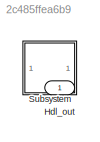
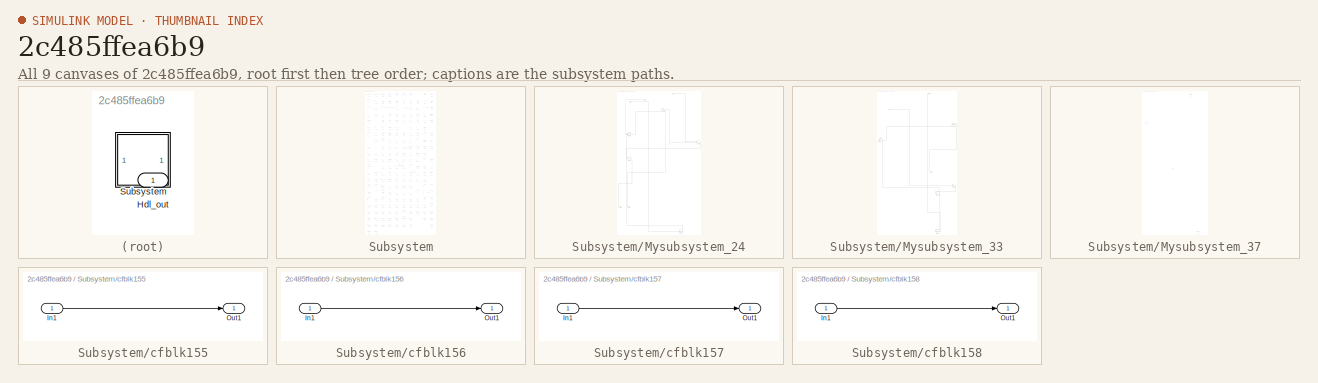
[diagram: thumbnail index - all 9 canvases of the model, root first then tree order]
MODEL slx_2c485ffea6b9
KIND model
CONFIG AbsTol = auto
CONFIG EnableMultiTasking = off
CONFIG FixedStep = auto
CONFIG MaxStep = auto
CONFIG MinStep = auto
CONFIG RelTol = 1e-3
CONFIG SampleTimeConstraint = Unconstrained
CONFIG SolverName = VariableStepAuto
CONFIG StartTime = 0.0
CONFIG StopTime = 10.0
BLOCK [Outport] Hdl_out
  OutDataTypeStr = uint8
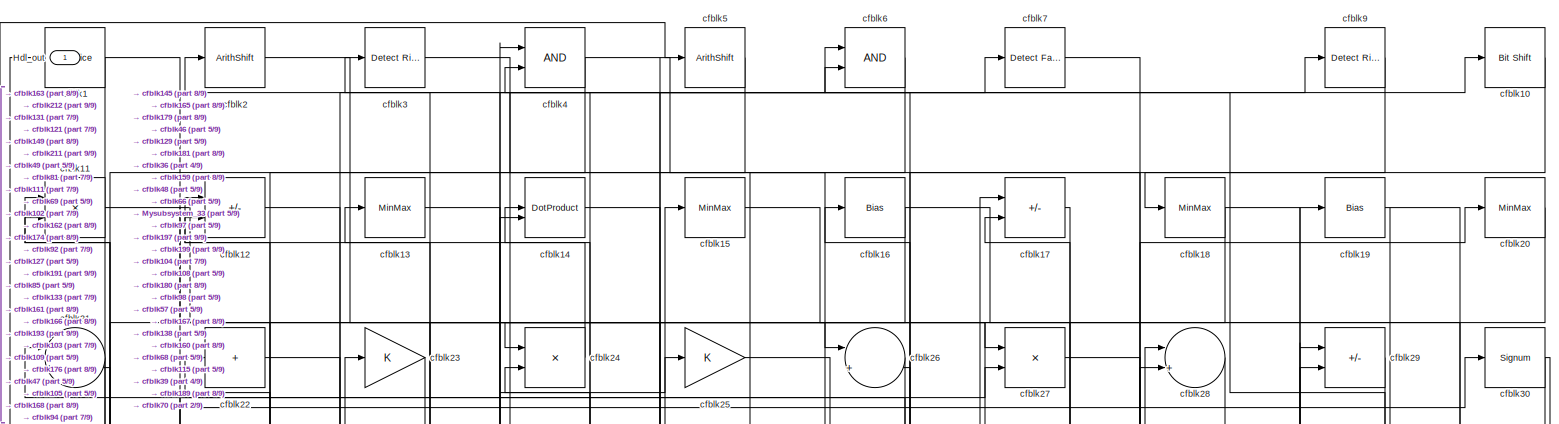
[diagram: Subsystem - part 1/9, full width, top band]
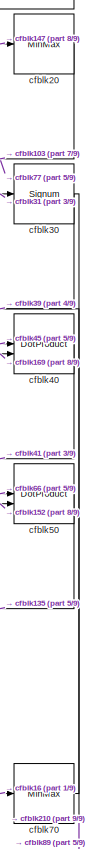
[diagram: Subsystem - part 2/9, top right region]
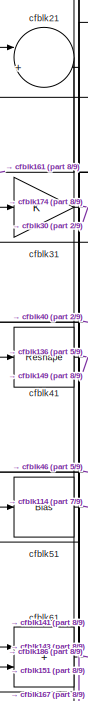
[diagram: Subsystem - part 3/9, top left region]
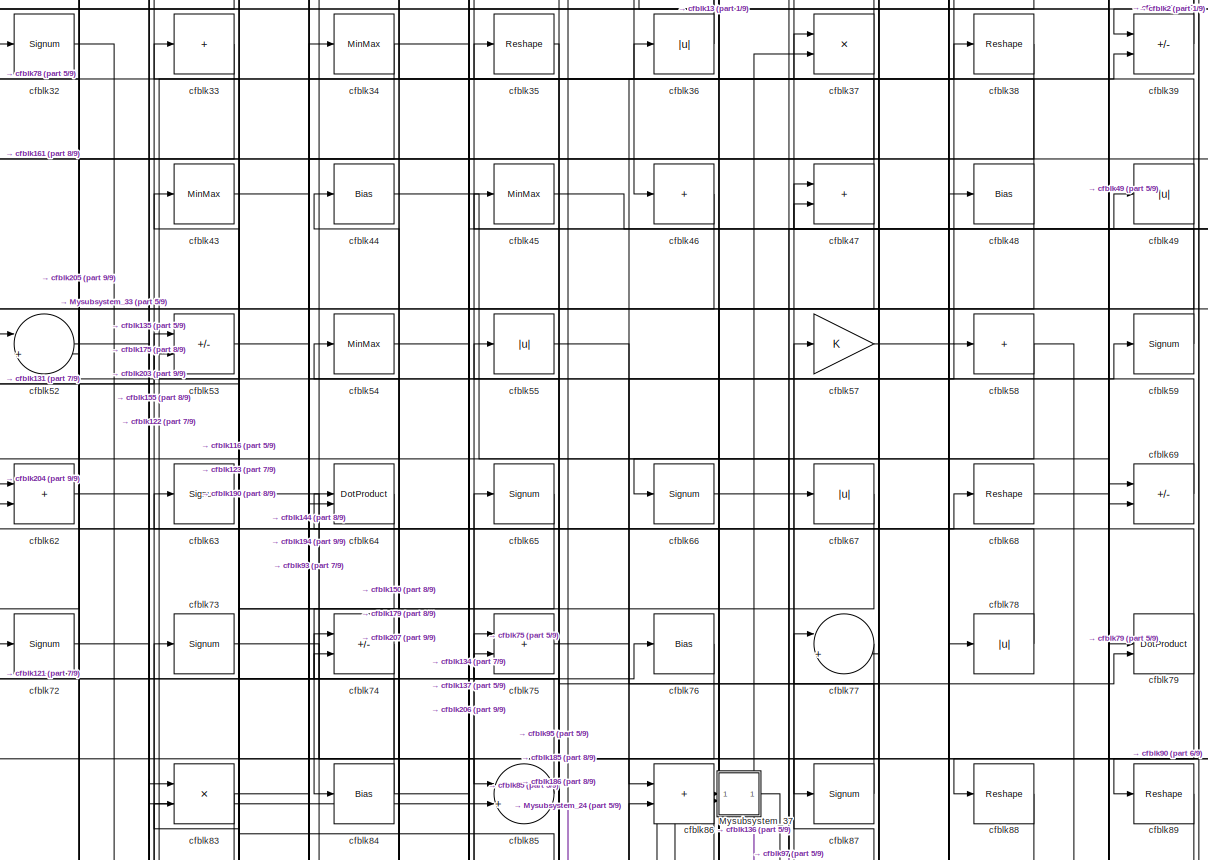
[diagram: Subsystem - part 4/9, full width, top band]
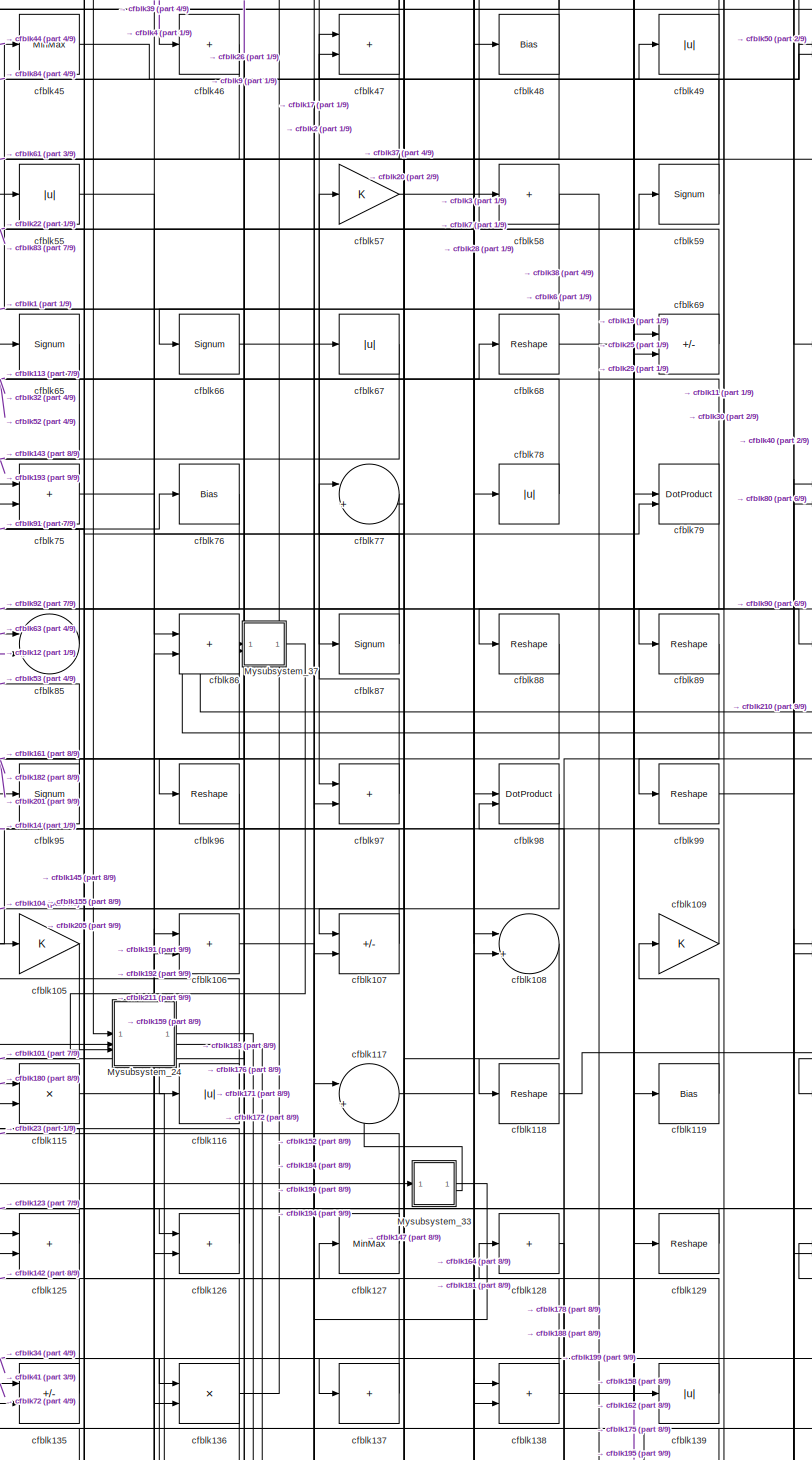
[diagram: Subsystem - part 5/9, central region]
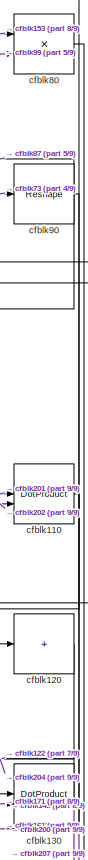
[diagram: Subsystem - part 6/9, middle right region]
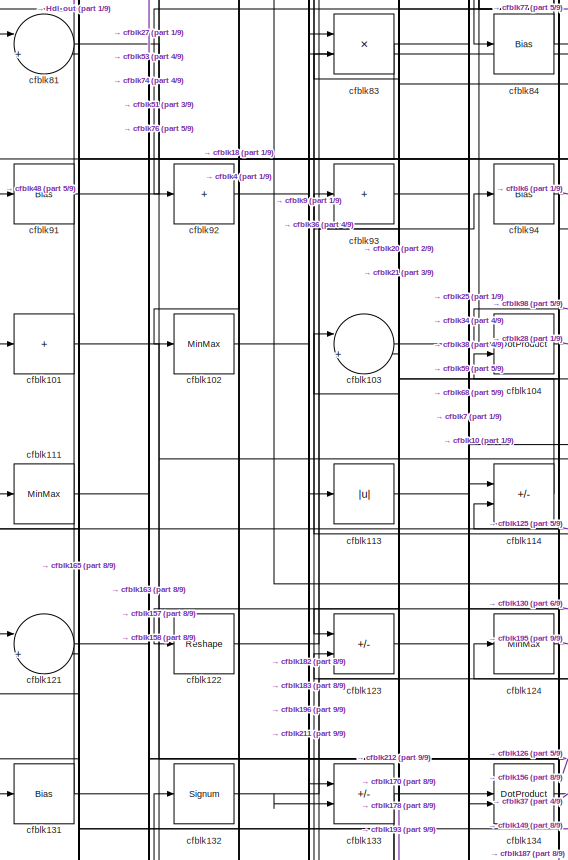
[diagram: Subsystem - part 7/9, middle left region]
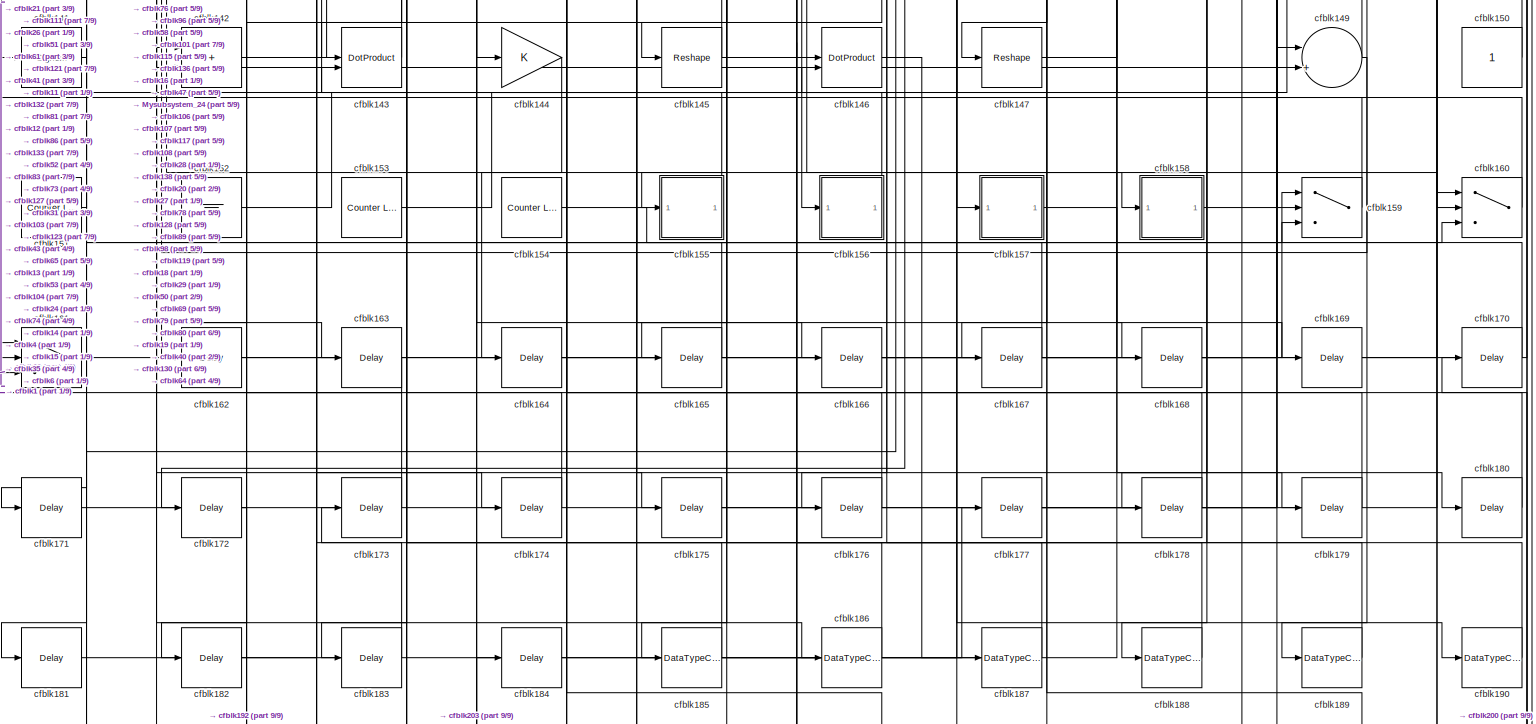
[diagram: Subsystem - part 8/9, full width, bottom band]
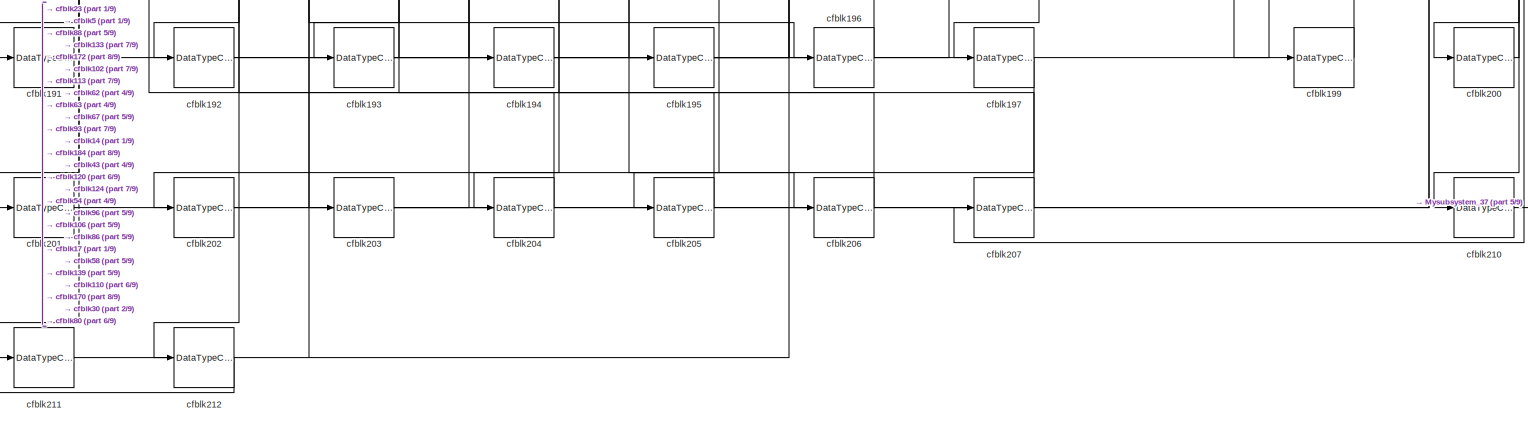
[diagram: Subsystem - part 9/9, full width, bottom band]
BLOCK [SubSystem] Subsystem
BLOCK [Outport] Subsystem/Hdl_out
  OutDataTypeStr = uint8
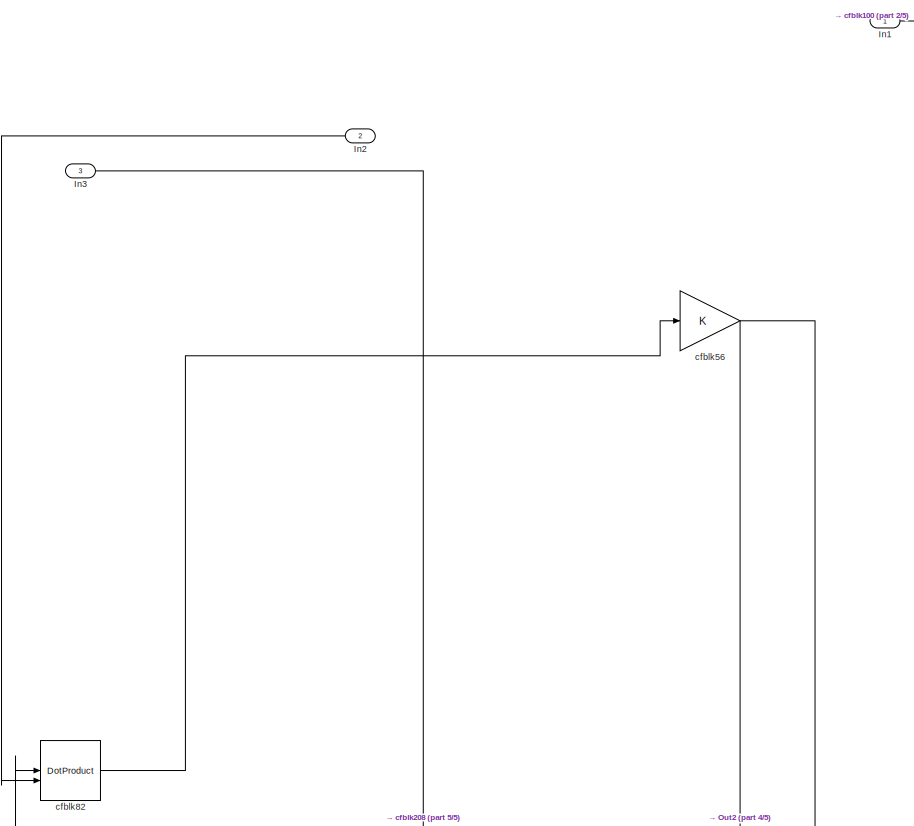
[diagram: Subsystem/Mysubsystem_24 - part 1/5, top center region]
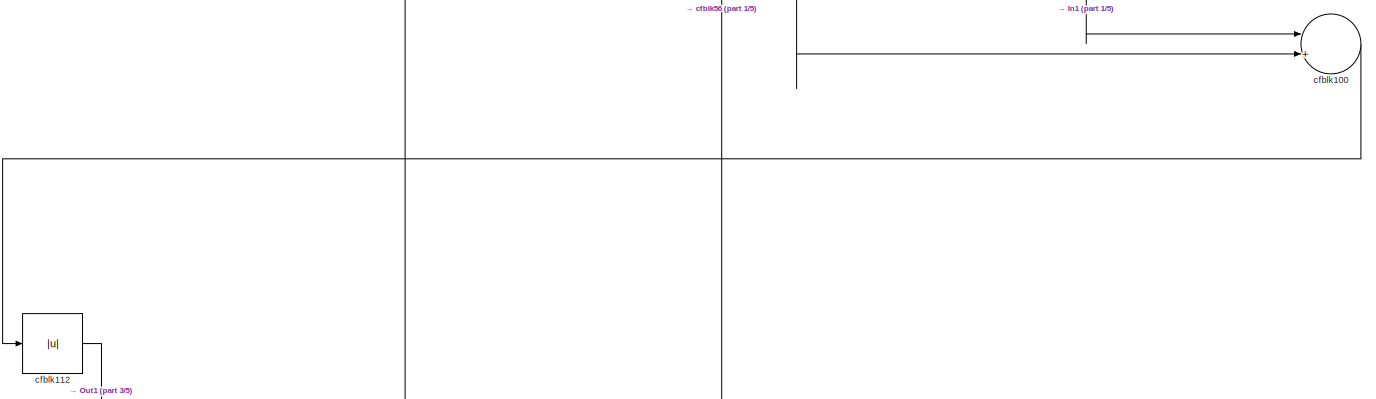
[diagram: Subsystem/Mysubsystem_24 - part 2/5, full width, middle band]
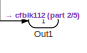
[diagram: Subsystem/Mysubsystem_24 - part 3/5, bottom left region]
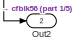
[diagram: Subsystem/Mysubsystem_24 - part 4/5, bottom left region]
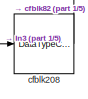
[diagram: Subsystem/Mysubsystem_24 - part 5/5, bottom right region]
BLOCK [SubSystem] Subsystem/Mysubsystem_24
  RTWFcnName = Mysubsystem_24
  RTWFcnNameOpts = User specified
  RTWFileNameOpts = Use function name
  RTWSystemCode = Reusable function
  TreatAsAtomicUnit = on
BLOCK [Inport] Subsystem/Mysubsystem_24/In1
BLOCK [Inport] Subsystem/Mysubsystem_24/In2
  Port = 2
BLOCK [Inport] Subsystem/Mysubsystem_24/In3
  Port = 3
BLOCK [Outport] Subsystem/Mysubsystem_24/Out1
BLOCK [Outport] Subsystem/Mysubsystem_24/Out2
  Port = 2
BLOCK [Sum] Subsystem/Mysubsystem_24/cfblk100
  Inputs = |++
BLOCK [Abs] Subsystem/Mysubsystem_24/cfblk112
  SaturateOnIntegerOverflow = off
BLOCK [DataTypeConversion] Subsystem/Mysubsystem_24/cfblk208
  OutDataTypeStr = uint8
  RndMeth = Floor
  SaturateOnIntegerOverflow = off
BLOCK [Gain] Subsystem/Mysubsystem_24/cfblk56
BLOCK [DotProduct] Subsystem/Mysubsystem_24/cfblk82
  OutDataTypeStr = Inherit: Inherit via internal rule
BLOCK [SubSystem] Subsystem/Mysubsystem_33
  RTWFcnName = Mysubsystem_33
  RTWFcnNameOpts = User specified
  RTWFileNameOpts = Use function name
  RTWSystemCode = Reusable function
  TreatAsAtomicUnit = on
BLOCK [Inport] Subsystem/Mysubsystem_33/In1
BLOCK [Outport] Subsystem/Mysubsystem_33/Out1
BLOCK [Outport] Subsystem/Mysubsystem_33/Out2
  Port = 2
BLOCK [Gain] Subsystem/Mysubsystem_33/cfblk140
BLOCK [Sum] Subsystem/Mysubsystem_33/cfblk148
  IconShape = rectangular
  Inputs = +
BLOCK [DataTypeConversion] Subsystem/Mysubsystem_33/cfblk198
  OutDataTypeStr = uint8
  RndMeth = Floor
  SaturateOnIntegerOverflow = off
BLOCK [MinMax] Subsystem/Mysubsystem_33/cfblk60
BLOCK [Reshape] Subsystem/Mysubsystem_33/cfblk71
BLOCK [SubSystem] Subsystem/Mysubsystem_37
  RTWFcnName = Mysubsystem_37
  RTWFcnNameOpts = User specified
  RTWFileNameOpts = Use function name
  RTWSystemCode = Reusable function
  TreatAsAtomicUnit = on
BLOCK [Inport] Subsystem/Mysubsystem_37/In2
  Port = 2
BLOCK [Outport] Subsystem/Mysubsystem_37/Out1
BLOCK [DataTypeConversion] Subsystem/Mysubsystem_37/cfblk209
  OutDataTypeStr = uint8
  RndMeth = Floor
  SaturateOnIntegerOverflow = off
BLOCK [Product] Subsystem/Mysubsystem_37/cfblk42
  Inputs = */
  RndMeth = Zero
  SaturateOnIntegerOverflow = on
BLOCK [Reference] Subsystem/Mysubsystem_37/cfblk8  REF=hdlsllib/Logic and Bit
Operations/Compare
To Constant
  SourceBlock = hdlsllib/Logic and Bit\nOperations/Compare\nTo Constant
  SourceType = Compare To Constant
BLOCK [Inport] Subsystem/Mysubsystem_37/u
BLOCK [Reference] Subsystem/cfblk1  REF=hdlsllib/Logic and Bit
Operations/Bit Slice
  SourceBlock = hdlsllib/Logic and Bit\nOperations/Bit Slice
  SourceType = Bit Slice
BLOCK [Reference] Subsystem/cfblk10  REF=hdlsllib/Logic and Bit
Operations/Bit Shift
  SourceBlock = hdlsllib/Logic and Bit\nOperations/Bit Shift
  SourceType = Bit Shift
BLOCK [Sum] Subsystem/cfblk101
  IconShape = rectangular
  Inputs = +
  OutDataTypeStr = uint8
BLOCK [MinMax] Subsystem/cfblk102
  OutDataTypeStr = uint8
BLOCK [Sum] Subsystem/cfblk103
  Inputs = |++
  OutDataTypeStr = uint8
BLOCK [DotProduct] Subsystem/cfblk104
  OutDataTypeStr = uint8
BLOCK [Gain] Subsystem/cfblk105
  OutDataTypeStr = uint8
BLOCK [Sum] Subsystem/cfblk106
  IconShape = rectangular
  OutDataTypeStr = uint8
BLOCK [Sum] Subsystem/cfblk107
  IconShape = rectangular
  Inputs = +-
  OutDataTypeStr = uint8
BLOCK [Sum] Subsystem/cfblk108
  Inputs = |++
  OutDataTypeStr = uint8
BLOCK [Gain] Subsystem/cfblk109
  OutDataTypeStr = uint8
BLOCK [Product] Subsystem/cfblk11
  Inputs = */
  OutDataTypeStr = uint8
  RndMeth = Zero
  SaturateOnIntegerOverflow = on
BLOCK [DotProduct] Subsystem/cfblk110
  OutDataTypeStr = uint8
BLOCK [MinMax] Subsystem/cfblk111
  OutDataTypeStr = uint8
BLOCK [Abs] Subsystem/cfblk113
  OutDataTypeStr = uint8
  SaturateOnIntegerOverflow = off
BLOCK [Sum] Subsystem/cfblk114
  IconShape = rectangular
  Inputs = +-
  OutDataTypeStr = uint8
BLOCK [Product] Subsystem/cfblk115
  Inputs = */
  OutDataTypeStr = uint8
  RndMeth = Zero
  SaturateOnIntegerOverflow = on
BLOCK [Abs] Subsystem/cfblk116
  OutDataTypeStr = uint8
  SaturateOnIntegerOverflow = off
BLOCK [Sum] Subsystem/cfblk117
  Inputs = |++
  OutDataTypeStr = uint8
BLOCK [Reshape] Subsystem/cfblk118
BLOCK [Bias] Subsystem/cfblk119
  Bias = 0.0
  SaturateOnIntegerOverflow = off
BLOCK [Sum] Subsystem/cfblk12
  IconShape = rectangular
  Inputs = +-
  OutDataTypeStr = uint8
BLOCK [Sum] Subsystem/cfblk120
  IconShape = rectangular
  Inputs = +
  OutDataTypeStr = uint8
BLOCK [Sum] Subsystem/cfblk121
  Inputs = |++
  OutDataTypeStr = uint8
BLOCK [Reshape] Subsystem/cfblk122
BLOCK [Sum] Subsystem/cfblk123
  IconShape = rectangular
  Inputs = +-
  OutDataTypeStr = uint8
BLOCK [MinMax] Subsystem/cfblk124
  OutDataTypeStr = uint8
BLOCK [Sum] Subsystem/cfblk125
  IconShape = rectangular
  OutDataTypeStr = uint8
BLOCK [Sum] Subsystem/cfblk126
  IconShape = rectangular
  OutDataTypeStr = uint8
BLOCK [MinMax] Subsystem/cfblk127
  OutDataTypeStr = uint8
BLOCK [Sum] Subsystem/cfblk128
  IconShape = rectangular
  Inputs = +
  OutDataTypeStr = uint8
BLOCK [Reshape] Subsystem/cfblk129
BLOCK [MinMax] Subsystem/cfblk13
  OutDataTypeStr = uint8
BLOCK [DotProduct] Subsystem/cfblk130
  OutDataTypeStr = uint8
BLOCK [Bias] Subsystem/cfblk131
  Bias = 0.0
  SaturateOnIntegerOverflow = off
BLOCK [Signum] Subsystem/cfblk132
BLOCK [Sum] Subsystem/cfblk133
  IconShape = rectangular
  Inputs = +-
  OutDataTypeStr = uint8
BLOCK [DotProduct] Subsystem/cfblk134
  OutDataTypeStr = uint8
BLOCK [Sum] Subsystem/cfblk135
  IconShape = rectangular
  Inputs = +-
  OutDataTypeStr = uint8
BLOCK [Product] Subsystem/cfblk136
  Inputs = */
  OutDataTypeStr = uint8
  RndMeth = Zero
  SaturateOnIntegerOverflow = on
BLOCK [Sum] Subsystem/cfblk137
  IconShape = rectangular
  Inputs = +
  OutDataTypeStr = uint8
BLOCK [Sum] Subsystem/cfblk138
  IconShape = rectangular
  OutDataTypeStr = uint8
BLOCK [Abs] Subsystem/cfblk139
  OutDataTypeStr = uint8
  SaturateOnIntegerOverflow = off
BLOCK [DotProduct] Subsystem/cfblk14
  OutDataTypeStr = uint8
BLOCK [Signum] Subsystem/cfblk141
BLOCK [Sum] Subsystem/cfblk142
  IconShape = rectangular
  OutDataTypeStr = uint8
BLOCK [DotProduct] Subsystem/cfblk143
  OutDataTypeStr = uint8
BLOCK [Gain] Subsystem/cfblk144
  OutDataTypeStr = uint8
BLOCK [Reshape] Subsystem/cfblk145
BLOCK [DotProduct] Subsystem/cfblk146
  OutDataTypeStr = uint8
BLOCK [Reshape] Subsystem/cfblk147
BLOCK [Sum] Subsystem/cfblk149
  Inputs = |++
  OutDataTypeStr = uint8
BLOCK [MinMax] Subsystem/cfblk15
  OutDataTypeStr = uint8
BLOCK [Constant] Subsystem/cfblk150
  OutDataTypeStr = uint8
  SampleTime = -1
BLOCK [Reference] Subsystem/cfblk151  REF=hdlsllib/Sources/Counter
Limited
  SourceBlock = hdlsllib/Sources/Counter\nLimited
  SourceType = Counter Limited
BLOCK [Ground] Subsystem/cfblk152
BLOCK [Reference] Subsystem/cfblk153  REF=hdlsllib/Sources/Counter
Limited
  SourceBlock = hdlsllib/Sources/Counter\nLimited
  SourceType = Counter Limited
BLOCK [Reference] Subsystem/cfblk154  REF=hdlsllib/Sources/Counter
Limited
  SourceBlock = hdlsllib/Sources/Counter\nLimited
  SourceType = Counter Limited
BLOCK [SubSystem] Subsystem/cfblk155
  LibrarySourceBlock = hdlsllib/Ports &\nSubsystems/Subsystem
BLOCK [Inport] Subsystem/cfblk155/In1
BLOCK [Outport] Subsystem/cfblk155/Out1
BLOCK [SubSystem] Subsystem/cfblk156
  LibrarySourceBlock = hdlsllib/Ports &\nSubsystems/Subsystem
BLOCK [Inport] Subsystem/cfblk156/In1
BLOCK [Outport] Subsystem/cfblk156/Out1
BLOCK [SubSystem] Subsystem/cfblk157
  LibrarySourceBlock = hdlsllib/Ports &\nSubsystems/Subsystem
BLOCK [Inport] Subsystem/cfblk157/In1
BLOCK [Outport] Subsystem/cfblk157/Out1
BLOCK [SubSystem] Subsystem/cfblk158
  LibrarySourceBlock = hdlsllib/Ports &\nSubsystems/Subsystem
BLOCK [Inport] Subsystem/cfblk158/In1
BLOCK [Outport] Subsystem/cfblk158/Out1
BLOCK [Switch] Subsystem/cfblk159
  InputSameDT = off
  OutDataTypeStr = uint8
  SaturateOnIntegerOverflow = off
BLOCK [Bias] Subsystem/cfblk16
  Bias = 0.0
  SaturateOnIntegerOverflow = off
BLOCK [Switch] Subsystem/cfblk160
  InputSameDT = off
  OutDataTypeStr = uint8
  SaturateOnIntegerOverflow = off
BLOCK [Switch] Subsystem/cfblk161
  InputSameDT = off
  OutDataTypeStr = uint8
  SaturateOnIntegerOverflow = off
BLOCK [Delay] Subsystem/cfblk162
  InputPortMap = u0
  SampleTime = 1
BLOCK [Delay] Subsystem/cfblk163
  InputPortMap = u0
  SampleTime = 1
BLOCK [Delay] Subsystem/cfblk164
  InputPortMap = u0
  SampleTime = 1
BLOCK [Delay] Subsystem/cfblk165
  InputPortMap = u0
  SampleTime = 1
BLOCK [Delay] Subsystem/cfblk166
  InputPortMap = u0
  SampleTime = 1
BLOCK [Delay] Subsystem/cfblk167
  InputPortMap = u0
  SampleTime = 1
BLOCK [Delay] Subsystem/cfblk168
  InputPortMap = u0
  SampleTime = 1
BLOCK [Delay] Subsystem/cfblk169
  InputPortMap = u0
  SampleTime = 1
BLOCK [Sum] Subsystem/cfblk17
  IconShape = rectangular
  Inputs = +-
  OutDataTypeStr = uint8
BLOCK [Delay] Subsystem/cfblk170
  InputPortMap = u0
  SampleTime = 1
BLOCK [Delay] Subsystem/cfblk171
  InputPortMap = u0
  SampleTime = 1
BLOCK [Delay] Subsystem/cfblk172
  InputPortMap = u0
  SampleTime = 1
BLOCK [Delay] Subsystem/cfblk173
  InputPortMap = u0
  SampleTime = 1
BLOCK [Delay] Subsystem/cfblk174
  InputPortMap = u0
  SampleTime = 1
BLOCK [Delay] Subsystem/cfblk175
  InputPortMap = u0
  SampleTime = 1
BLOCK [Delay] Subsystem/cfblk176
  InputPortMap = u0
  SampleTime = 1
BLOCK [Delay] Subsystem/cfblk177
  InputPortMap = u0
  SampleTime = 1
BLOCK [Delay] Subsystem/cfblk178
  InputPortMap = u0
  SampleTime = 1
BLOCK [Delay] Subsystem/cfblk179
  InputPortMap = u0
  SampleTime = 1
BLOCK [MinMax] Subsystem/cfblk18
  OutDataTypeStr = uint8
BLOCK [Delay] Subsystem/cfblk180
  InputPortMap = u0
  SampleTime = 1
BLOCK [Delay] Subsystem/cfblk181
  InputPortMap = u0
  SampleTime = 1
BLOCK [Delay] Subsystem/cfblk182
  InputPortMap = u0
  SampleTime = 1
BLOCK [Delay] Subsystem/cfblk183
  InputPortMap = u0
  SampleTime = 1
BLOCK [Delay] Subsystem/cfblk184
  InputPortMap = u0
  SampleTime = 1
BLOCK [DataTypeConversion] Subsystem/cfblk185
  OutDataTypeStr = uint8
  RndMeth = Floor
  SaturateOnIntegerOverflow = off
BLOCK [DataTypeConversion] Subsystem/cfblk186
  OutDataTypeStr = uint8
  RndMeth = Floor
  SaturateOnIntegerOverflow = off
BLOCK [DataTypeConversion] Subsystem/cfblk187
  OutDataTypeStr = uint8
  RndMeth = Floor
  SaturateOnIntegerOverflow = off
BLOCK [DataTypeConversion] Subsystem/cfblk188
  OutDataTypeStr = uint8
  RndMeth = Floor
  SaturateOnIntegerOverflow = off
BLOCK [DataTypeConversion] Subsystem/cfblk189
  OutDataTypeStr = uint8
  RndMeth = Floor
  SaturateOnIntegerOverflow = off
BLOCK [Bias] Subsystem/cfblk19
  Bias = 0.0
  SaturateOnIntegerOverflow = off
BLOCK [DataTypeConversion] Subsystem/cfblk190
  OutDataTypeStr = uint8
  RndMeth = Floor
  SaturateOnIntegerOverflow = off
BLOCK [DataTypeConversion] Subsystem/cfblk191
  OutDataTypeStr = uint8
  RndMeth = Floor
  SaturateOnIntegerOverflow = off
BLOCK [DataTypeConversion] Subsystem/cfblk192
  OutDataTypeStr = uint8
  RndMeth = Floor
  SaturateOnIntegerOverflow = off
BLOCK [DataTypeConversion] Subsystem/cfblk193
  OutDataTypeStr = uint8
  RndMeth = Floor
  SaturateOnIntegerOverflow = off
BLOCK [DataTypeConversion] Subsystem/cfblk194
  OutDataTypeStr = uint8
  RndMeth = Floor
  SaturateOnIntegerOverflow = off
BLOCK [DataTypeConversion] Subsystem/cfblk195
  OutDataTypeStr = uint8
  RndMeth = Floor
  SaturateOnIntegerOverflow = off
BLOCK [DataTypeConversion] Subsystem/cfblk196
  OutDataTypeStr = uint8
  RndMeth = Floor
  SaturateOnIntegerOverflow = off
BLOCK [DataTypeConversion] Subsystem/cfblk197
  OutDataTypeStr = uint8
  RndMeth = Floor
  SaturateOnIntegerOverflow = off
BLOCK [DataTypeConversion] Subsystem/cfblk199
  OutDataTypeStr = uint8
  RndMeth = Floor
  SaturateOnIntegerOverflow = off
BLOCK [ArithShift] Subsystem/cfblk2
  BitShiftNumber = 8
  InputPortMap = u0
BLOCK [MinMax] Subsystem/cfblk20
  OutDataTypeStr = uint8
BLOCK [DataTypeConversion] Subsystem/cfblk200
  OutDataTypeStr = uint8
  RndMeth = Floor
  SaturateOnIntegerOverflow = off
BLOCK [DataTypeConversion] Subsystem/cfblk201
  OutDataTypeStr = uint8
  RndMeth = Floor
  SaturateOnIntegerOverflow = off
BLOCK [DataTypeConversion] Subsystem/cfblk202
  OutDataTypeStr = uint8
  RndMeth = Floor
  SaturateOnIntegerOverflow = off
BLOCK [DataTypeConversion] Subsystem/cfblk203
  OutDataTypeStr = uint8
  RndMeth = Floor
  SaturateOnIntegerOverflow = off
BLOCK [DataTypeConversion] Subsystem/cfblk204
  OutDataTypeStr = uint8
  RndMeth = Floor
  SaturateOnIntegerOverflow = off
BLOCK [DataTypeConversion] Subsystem/cfblk205
  OutDataTypeStr = uint8
  RndMeth = Floor
  SaturateOnIntegerOverflow = off
BLOCK [DataTypeConversion] Subsystem/cfblk206
  OutDataTypeStr = uint8
  RndMeth = Floor
  SaturateOnIntegerOverflow = off
BLOCK [DataTypeConversion] Subsystem/cfblk207
  OutDataTypeStr = uint8
  RndMeth = Floor
  SaturateOnIntegerOverflow = off
BLOCK [Sum] Subsystem/cfblk21
  Inputs = |++
  OutDataTypeStr = uint8
BLOCK [DataTypeConversion] Subsystem/cfblk210
  OutDataTypeStr = uint8
  RndMeth = Floor
  SaturateOnIntegerOverflow = off
BLOCK [DataTypeConversion] Subsystem/cfblk211
  OutDataTypeStr = uint8
  RndMeth = Floor
  SaturateOnIntegerOverflow = off
BLOCK [DataTypeConversion] Subsystem/cfblk212
  OutDataTypeStr = uint8
  RndMeth = Floor
  SaturateOnIntegerOverflow = off
BLOCK [Sum] Subsystem/cfblk22
  IconShape = rectangular
  Inputs = +
  OutDataTypeStr = uint8
BLOCK [Gain] Subsystem/cfblk23
  OutDataTypeStr = uint8
BLOCK [Product] Subsystem/cfblk24
  Inputs = */
  OutDataTypeStr = uint8
  RndMeth = Zero
  SaturateOnIntegerOverflow = on
BLOCK [Gain] Subsystem/cfblk25
  OutDataTypeStr = uint8
BLOCK [Sum] Subsystem/cfblk26
  Inputs = |++
  OutDataTypeStr = uint8
BLOCK [Product] Subsystem/cfblk27
  Inputs = */
  OutDataTypeStr = uint8
  RndMeth = Zero
  SaturateOnIntegerOverflow = on
BLOCK [Sum] Subsystem/cfblk28
  Inputs = |++
  OutDataTypeStr = uint8
BLOCK [Sum] Subsystem/cfblk29
  IconShape = rectangular
  Inputs = +-
  OutDataTypeStr = uint8
BLOCK [Reference] Subsystem/cfblk3  REF=hdlsllib/Logic and Bit
Operations/Detect Rise
Positive
  SourceBlock = hdlsllib/Logic and Bit\nOperations/Detect Rise\nPositive
  SourceType = Detect Rise Positive
BLOCK [Signum] Subsystem/cfblk30
BLOCK [Gain] Subsystem/cfblk31
  OutDataTypeStr = uint8
BLOCK [Signum] Subsystem/cfblk32
BLOCK [Sum] Subsystem/cfblk33
  IconShape = rectangular
  Inputs = +
  OutDataTypeStr = uint8
BLOCK [MinMax] Subsystem/cfblk34
  OutDataTypeStr = uint8
BLOCK [Reshape] Subsystem/cfblk35
BLOCK [Abs] Subsystem/cfblk36
  OutDataTypeStr = uint8
  SaturateOnIntegerOverflow = off
BLOCK [Product] Subsystem/cfblk37
  Inputs = */
  OutDataTypeStr = uint8
  RndMeth = Zero
  SaturateOnIntegerOverflow = on
BLOCK [Reshape] Subsystem/cfblk38
BLOCK [Sum] Subsystem/cfblk39
  IconShape = rectangular
  Inputs = +-
  OutDataTypeStr = uint8
BLOCK [Logic] Subsystem/cfblk4
  AllPortsSameDT = off
  OutDataTypeStr = boolean
BLOCK [DotProduct] Subsystem/cfblk40
  OutDataTypeStr = uint8
BLOCK [Reshape] Subsystem/cfblk41
BLOCK [MinMax] Subsystem/cfblk43
  OutDataTypeStr = uint8
BLOCK [Bias] Subsystem/cfblk44
  Bias = 0.0
  SaturateOnIntegerOverflow = off
BLOCK [MinMax] Subsystem/cfblk45
  OutDataTypeStr = uint8
BLOCK [Sum] Subsystem/cfblk46
  IconShape = rectangular
  Inputs = +
  OutDataTypeStr = uint8
BLOCK [Sum] Subsystem/cfblk47
  IconShape = rectangular
  OutDataTypeStr = uint8
BLOCK [Bias] Subsystem/cfblk48
  Bias = 0.0
  SaturateOnIntegerOverflow = off
BLOCK [Abs] Subsystem/cfblk49
  OutDataTypeStr = uint8
  SaturateOnIntegerOverflow = off
BLOCK [ArithShift] Subsystem/cfblk5
  BitShiftNumber = 8
  InputPortMap = u0
BLOCK [DotProduct] Subsystem/cfblk50
  OutDataTypeStr = uint8
BLOCK [Bias] Subsystem/cfblk51
  Bias = 0.0
  SaturateOnIntegerOverflow = off
BLOCK [Sum] Subsystem/cfblk52
  Inputs = |++
  OutDataTypeStr = uint8
BLOCK [Sum] Subsystem/cfblk53
  IconShape = rectangular
  Inputs = +-
  OutDataTypeStr = uint8
BLOCK [MinMax] Subsystem/cfblk54
  OutDataTypeStr = uint8
BLOCK [Abs] Subsystem/cfblk55
  OutDataTypeStr = uint8
  SaturateOnIntegerOverflow = off
BLOCK [Gain] Subsystem/cfblk57
  OutDataTypeStr = uint8
BLOCK [Sum] Subsystem/cfblk58
  IconShape = rectangular
  Inputs = +
  OutDataTypeStr = uint8
BLOCK [Signum] Subsystem/cfblk59
BLOCK [Logic] Subsystem/cfblk6
  AllPortsSameDT = off
  OutDataTypeStr = boolean
BLOCK [Sum] Subsystem/cfblk61
  IconShape = rectangular
  OutDataTypeStr = uint8
BLOCK [Sum] Subsystem/cfblk62
  IconShape = rectangular
  OutDataTypeStr = uint8
BLOCK [Signum] Subsystem/cfblk63
BLOCK [DotProduct] Subsystem/cfblk64
  OutDataTypeStr = uint8
BLOCK [Signum] Subsystem/cfblk65
BLOCK [Signum] Subsystem/cfblk66
BLOCK [Abs] Subsystem/cfblk67
  OutDataTypeStr = uint8
  SaturateOnIntegerOverflow = off
BLOCK [Reshape] Subsystem/cfblk68
BLOCK [Sum] Subsystem/cfblk69
  IconShape = rectangular
  Inputs = +-
  OutDataTypeStr = uint8
BLOCK [Reference] Subsystem/cfblk7  REF=hdlsllib/Logic and Bit
Operations/Detect Fall
Nonpositive
  SourceBlock = hdlsllib/Logic and Bit\nOperations/Detect Fall\nNonpositive
  SourceType = Detect Fall Nonpositive
BLOCK [MinMax] Subsystem/cfblk70
  OutDataTypeStr = uint8
BLOCK [Signum] Subsystem/cfblk72
BLOCK [Signum] Subsystem/cfblk73
BLOCK [Sum] Subsystem/cfblk74
  IconShape = rectangular
  Inputs = +-
  OutDataTypeStr = uint8
BLOCK [Sum] Subsystem/cfblk75
  IconShape = rectangular
  OutDataTypeStr = uint8
BLOCK [Bias] Subsystem/cfblk76
  Bias = 0.0
  SaturateOnIntegerOverflow = off
BLOCK [Sum] Subsystem/cfblk77
  Inputs = |++
  OutDataTypeStr = uint8
BLOCK [Abs] Subsystem/cfblk78
  OutDataTypeStr = uint8
  SaturateOnIntegerOverflow = off
BLOCK [DotProduct] Subsystem/cfblk79
  OutDataTypeStr = uint8
BLOCK [Product] Subsystem/cfblk80
  Inputs = */
  OutDataTypeStr = uint8
  RndMeth = Zero
  SaturateOnIntegerOverflow = on
BLOCK [Sum] Subsystem/cfblk81
  Inputs = |++
  OutDataTypeStr = uint8
BLOCK [Product] Subsystem/cfblk83
  Inputs = */
  OutDataTypeStr = uint8
  RndMeth = Zero
  SaturateOnIntegerOverflow = on
BLOCK [Bias] Subsystem/cfblk84
  Bias = 0.0
  SaturateOnIntegerOverflow = off
BLOCK [Sum] Subsystem/cfblk85
  Inputs = |++
  OutDataTypeStr = uint8
BLOCK [Sum] Subsystem/cfblk86
  IconShape = rectangular
  OutDataTypeStr = uint8
BLOCK [Signum] Subsystem/cfblk87
BLOCK [Reshape] Subsystem/cfblk88
BLOCK [Reshape] Subsystem/cfblk89
BLOCK [Reference] Subsystem/cfblk9  REF=hdlsllib/Logic and Bit
Operations/Detect Rise
Nonnegative
  SourceBlock = hdlsllib/Logic and Bit\nOperations/Detect Rise\nNonnegative
  SourceType = Detect Rise Nonnegative
BLOCK [Reshape] Subsystem/cfblk90
BLOCK [Bias] Subsystem/cfblk91
  Bias = 0.0
  SaturateOnIntegerOverflow = off
BLOCK [Sum] Subsystem/cfblk92
  IconShape = rectangular
  Inputs = +
  OutDataTypeStr = uint8
BLOCK [Sum] Subsystem/cfblk93
  IconShape = rectangular
  Inputs = +
  OutDataTypeStr = uint8
BLOCK [Bias] Subsystem/cfblk94
  Bias = 0.0
  SaturateOnIntegerOverflow = off
BLOCK [Signum] Subsystem/cfblk95
BLOCK [Reshape] Subsystem/cfblk96
BLOCK [Sum] Subsystem/cfblk97
  IconShape = rectangular
  OutDataTypeStr = uint8
BLOCK [DotProduct] Subsystem/cfblk98
  OutDataTypeStr = uint8
BLOCK [Reshape] Subsystem/cfblk99
LINE Subsystem/Mysubsystem_24/In1:1 -> Subsystem/Mysubsystem_24/cfblk100:1
LINE Subsystem/Mysubsystem_24/In2:1 -> Subsystem/Mysubsystem_24/cfblk82:2
LINE Subsystem/Mysubsystem_24/In3:1 -> Subsystem/Mysubsystem_24/cfblk208:1
LINE Subsystem/Mysubsystem_24/cfblk100:1 -> Subsystem/Mysubsystem_24/cfblk112:1
LINE Subsystem/Mysubsystem_24/cfblk112:1 -> Subsystem/Mysubsystem_24/Out1:1
LINE Subsystem/Mysubsystem_24/cfblk208:1 -> Subsystem/Mysubsystem_24/cfblk82:1
NET Subsystem/Mysubsystem_24/cfblk56:1 -> Subsystem/Mysubsystem_24/Out2:1, Subsystem/Mysubsystem_24/cfblk100:2
LINE Subsystem/Mysubsystem_24/cfblk82:1 -> Subsystem/Mysubsystem_24/cfblk56:1
LINE Subsystem/Mysubsystem_24:1 -> Subsystem/cfblk171:1
LINE Subsystem/Mysubsystem_24:2 -> Subsystem/cfblk172:1
LINE Subsystem/Mysubsystem_33/In1:1 -> Subsystem/Mysubsystem_33/cfblk140:1
LINE Subsystem/Mysubsystem_33/cfblk140:1 -> Subsystem/Mysubsystem_33/cfblk148:1
NET Subsystem/Mysubsystem_33/cfblk148:1 -> Subsystem/Mysubsystem_33/cfblk198:1, Subsystem/Mysubsystem_33/cfblk71:1
LINE Subsystem/Mysubsystem_33/cfblk198:1 -> Subsystem/Mysubsystem_33/Out1:1
LINE Subsystem/Mysubsystem_33/cfblk60:1 -> Subsystem/Mysubsystem_33/Out2:1
LINE Subsystem/Mysubsystem_33/cfblk71:1 -> Subsystem/Mysubsystem_33/cfblk60:1
LINE Subsystem/Mysubsystem_33:1 -> Subsystem/cfblk17:1
LINE Subsystem/Mysubsystem_33:2 -> Subsystem/cfblk117:2
LINE Subsystem/Mysubsystem_37/In2:1 -> Subsystem/Mysubsystem_37/cfblk42:2
LINE Subsystem/Mysubsystem_37/cfblk209:1 -> Subsystem/Mysubsystem_37/cfblk42:1
LINE Subsystem/Mysubsystem_37/cfblk42:1 -> Subsystem/Mysubsystem_37/Out1:1
LINE Subsystem/Mysubsystem_37/cfblk8:1 -> Subsystem/Mysubsystem_37/cfblk209:1
LINE Subsystem/Mysubsystem_37/u:1 -> Subsystem/Mysubsystem_37/cfblk8:1
LINE Subsystem/Mysubsystem_37:1 -> Subsystem/Mysubsystem_24:3
NET Subsystem/cfblk101:1 -> Subsystem/cfblk126:2, Subsystem/cfblk156:1
LINE Subsystem/cfblk102:1 -> Subsystem/cfblk196:1
LINE Subsystem/cfblk103:1 -> Subsystem/cfblk10:1
LINE Subsystem/cfblk104:1 -> Subsystem/cfblk28:2
LINE Subsystem/cfblk105:1 -> Subsystem/cfblk125:2
LINE Subsystem/cfblk106:1 -> Subsystem/cfblk190:1
LINE Subsystem/cfblk107:1 -> Subsystem/cfblk65:1
NET Subsystem/cfblk108:1 -> Subsystem/cfblk118:1, Subsystem/cfblk147:1
LINE Subsystem/cfblk109:1 -> Subsystem/cfblk14:1
LINE Subsystem/cfblk10:1 -> Subsystem/cfblk18:1
LINE Subsystem/cfblk110:1 -> Subsystem/cfblk200:1
LINE Subsystem/cfblk111:1 -> Subsystem/cfblk27:2
NET Subsystem/cfblk113:1 -> Subsystem/cfblk134:1, Subsystem/cfblk68:1
LINE Subsystem/cfblk114:1 -> Subsystem/cfblk21:1
LINE Subsystem/cfblk115:1 -> Subsystem/cfblk159:2
LINE Subsystem/cfblk116:1 -> Subsystem/cfblk52:1
NET Subsystem/cfblk117:1 -> Subsystem/cfblk47:2, Subsystem/cfblk48:1, Subsystem/cfblk77:1
LINE Subsystem/cfblk118:1 -> Subsystem/Mysubsystem_37:1
LINE Subsystem/cfblk119:1 -> Subsystem/cfblk109:1
NET Subsystem/cfblk11:1 -> Subsystem/cfblk105:1, Subsystem/cfblk26:1
LINE Subsystem/cfblk120:1 -> Subsystem/cfblk204:1
NET Subsystem/cfblk121:1 -> Subsystem/cfblk163:1, Subsystem/cfblk74:1
LINE Subsystem/cfblk122:1 -> Subsystem/cfblk36:1
NET Subsystem/cfblk123:1 -> Subsystem/cfblk126:1, Subsystem/cfblk83:2
LINE Subsystem/cfblk124:1 -> Subsystem/cfblk195:1
LINE Subsystem/cfblk125:1 -> Subsystem/cfblk101:1
LINE Subsystem/cfblk126:1 -> Subsystem/cfblk95:1
LINE Subsystem/cfblk127:1 -> Subsystem/cfblk23:1
LINE Subsystem/cfblk128:1 -> Subsystem/cfblk178:1
LINE Subsystem/cfblk129:1 -> Subsystem/cfblk125:1
LINE Subsystem/cfblk12:1 -> Subsystem/cfblk85:2
NET Subsystem/cfblk130:1 -> Subsystem/cfblk122:1, Subsystem/cfblk142:2
NET Subsystem/cfblk131:1 -> Subsystem/Hdl_out:1, Subsystem/cfblk53:2
NET Subsystem/cfblk132:1 -> Subsystem/cfblk133:2, Subsystem/cfblk94:1
NET Subsystem/cfblk133:1 -> Subsystem/cfblk212:1, Subsystem/cfblk25:1, Subsystem/cfblk7:1
NET Subsystem/cfblk134:1 -> Subsystem/cfblk114:2, Subsystem/cfblk37:1
LINE Subsystem/cfblk135:1 -> Subsystem/cfblk44:1
NET Subsystem/cfblk136:1 -> Subsystem/cfblk183:1, Subsystem/cfblk37:2, Subsystem/cfblk75:2
LINE Subsystem/cfblk137:1 -> Subsystem/cfblk75:1
NET Subsystem/cfblk138:1 -> Subsystem/cfblk26:2, Subsystem/cfblk29:1
LINE Subsystem/cfblk139:1 -> Subsystem/cfblk128:1
LINE Subsystem/cfblk13:1 -> Subsystem/cfblk166:1
LINE Subsystem/cfblk141:1 -> Subsystem/cfblk51:1
LINE Subsystem/cfblk142:1 -> Subsystem/cfblk127:1
LINE Subsystem/cfblk143:1 -> Subsystem/cfblk31:1
LINE Subsystem/cfblk144:1 -> Subsystem/cfblk164:1
NET Subsystem/cfblk145:1 -> Subsystem/cfblk15:1, Subsystem/cfblk58:1
LINE Subsystem/cfblk146:1 -> Subsystem/cfblk187:1
LINE Subsystem/cfblk147:1 -> Subsystem/cfblk20:1
NET Subsystem/cfblk149:1 -> Subsystem/cfblk11:1, Subsystem/cfblk132:1
LINE Subsystem/cfblk14:1 -> Subsystem/cfblk168:1
LINE Subsystem/cfblk150:1 -> Subsystem/cfblk64:1
LINE Subsystem/cfblk151:1 -> Subsystem/cfblk61:1
NET Subsystem/cfblk152:1 -> Subsystem/cfblk107:2, Subsystem/cfblk50:2, Subsystem/cfblk78:1
LINE Subsystem/cfblk153:1 -> Subsystem/cfblk80:1
NET Subsystem/cfblk154:1 -> Subsystem/cfblk159:1, Subsystem/cfblk160:3
LINE Subsystem/cfblk155/In1:1 -> Subsystem/cfblk155/Out1:1
LINE Subsystem/cfblk155:1 -> Subsystem/cfblk73:1
LINE Subsystem/cfblk156/In1:1 -> Subsystem/cfblk156/Out1:1
LINE Subsystem/cfblk156:1 -> Subsystem/cfblk111:1
LINE Subsystem/cfblk157/In1:1 -> Subsystem/cfblk157/Out1:1
LINE Subsystem/cfblk157:1 -> Subsystem/cfblk169:1
LINE Subsystem/cfblk158/In1:1 -> Subsystem/cfblk158/Out1:1
LINE Subsystem/cfblk158:1 -> Subsystem/cfblk119:1
LINE Subsystem/cfblk159:1 -> Subsystem/cfblk16:1
LINE Subsystem/cfblk15:1 -> Subsystem/cfblk27:1
LINE Subsystem/cfblk160:1 -> Subsystem/cfblk141:1
NET Subsystem/cfblk161:1 -> Subsystem/cfblk130:1, Subsystem/cfblk4:1
LINE Subsystem/cfblk162:1 -> Subsystem/cfblk69:1
LINE Subsystem/cfblk163:1 -> Subsystem/cfblk1:1
LINE Subsystem/cfblk164:1 -> Subsystem/cfblk108:2
LINE Subsystem/cfblk165:1 -> Subsystem/cfblk121:1
LINE Subsystem/cfblk166:1 -> Subsystem/cfblk29:2
LINE Subsystem/cfblk167:1 -> Subsystem/cfblk21:2
LINE Subsystem/cfblk168:1 -> Subsystem/cfblk159:3
LINE Subsystem/cfblk169:1 -> Subsystem/cfblk40:2
NET Subsystem/cfblk16:1 -> Subsystem/cfblk24:1, Subsystem/cfblk70:1
LINE Subsystem/cfblk170:1 -> Subsystem/cfblk103:1
LINE Subsystem/cfblk171:1 -> Subsystem/cfblk130:2
LINE Subsystem/cfblk172:1 -> Subsystem/cfblk192:1
LINE Subsystem/cfblk173:1 -> Subsystem/cfblk142:1
LINE Subsystem/cfblk174:1 -> Subsystem/cfblk12:2
LINE Subsystem/cfblk175:1 -> Subsystem/cfblk79:1
LINE Subsystem/cfblk176:1 -> Subsystem/cfblk24:2
LINE Subsystem/cfblk177:1 -> Subsystem/cfblk149:1
LINE Subsystem/cfblk178:1 -> Subsystem/cfblk123:2
LINE Subsystem/cfblk179:1 -> Subsystem/cfblk74:2
LINE Subsystem/cfblk17:1 -> Subsystem/cfblk197:1
LINE Subsystem/cfblk180:1 -> Subsystem/cfblk115:1
LINE Subsystem/cfblk181:1 -> Subsystem/cfblk138:1
LINE Subsystem/cfblk182:1 -> Subsystem/cfblk133:1
LINE Subsystem/cfblk183:1 -> Subsystem/cfblk83:1
LINE Subsystem/cfblk184:1 -> Subsystem/cfblk117:1
NET Subsystem/cfblk185:1 -> Subsystem/cfblk143:2, Subsystem/cfblk177:1
LINE Subsystem/cfblk186:1 -> Subsystem/cfblk35:1
NET Subsystem/cfblk187:1 -> Subsystem/cfblk104:2, Subsystem/cfblk173:1
LINE Subsystem/cfblk188:1 -> Subsystem/cfblk146:1
LINE Subsystem/cfblk189:1 -> Subsystem/cfblk146:2
NET Subsystem/cfblk18:1 -> Subsystem/cfblk121:2, Subsystem/cfblk160:2, Subsystem/cfblk162:1, Subsystem/cfblk81:2
NET Subsystem/cfblk190:1 -> Subsystem/cfblk43:1, Subsystem/cfblk98:2
LINE Subsystem/cfblk191:1 -> Subsystem/cfblk106:1
LINE Subsystem/cfblk192:1 -> Subsystem/cfblk106:2
NET Subsystem/cfblk193:1 -> Subsystem/cfblk14:2, Subsystem/cfblk93:1
LINE Subsystem/cfblk194:1 -> Subsystem/cfblk67:1
LINE Subsystem/cfblk195:1 -> Subsystem/cfblk139:1
LINE Subsystem/cfblk196:1 -> Subsystem/cfblk124:1
LINE Subsystem/cfblk197:1 -> Subsystem/cfblk202:1
LINE Subsystem/cfblk199:1 -> Subsystem/cfblk17:2
NET Subsystem/cfblk19:1 -> Subsystem/cfblk160:1, Subsystem/cfblk189:1
LINE Subsystem/cfblk1:1 -> Subsystem/cfblk69:2
LINE Subsystem/cfblk200:1 -> Subsystem/cfblk170:1
LINE Subsystem/cfblk201:1 -> Subsystem/cfblk110:1
LINE Subsystem/cfblk202:1 -> Subsystem/cfblk110:2
LINE Subsystem/cfblk203:1 -> Subsystem/cfblk184:1
LINE Subsystem/cfblk204:1 -> Subsystem/cfblk62:1
LINE Subsystem/cfblk205:1 -> Subsystem/cfblk62:2
LINE Subsystem/cfblk206:1 -> Subsystem/cfblk63:1
LINE Subsystem/cfblk207:1 -> Subsystem/cfblk54:1
NET Subsystem/cfblk20:1 -> Subsystem/cfblk103:2, Subsystem/cfblk77:2
LINE Subsystem/cfblk210:1 -> Subsystem/Mysubsystem_37:2
NET Subsystem/cfblk211:1 -> Subsystem/cfblk113:1, Subsystem/cfblk86:2
LINE Subsystem/cfblk212:1 -> Subsystem/cfblk5:1
LINE Subsystem/cfblk21:1 -> Subsystem/cfblk161:1
LINE Subsystem/cfblk22:1 -> Subsystem/cfblk138:2
LINE Subsystem/cfblk23:1 -> Subsystem/cfblk191:1
LINE Subsystem/cfblk24:1 -> Subsystem/cfblk12:1
LINE Subsystem/cfblk25:1 -> Subsystem/cfblk129:1
LINE Subsystem/cfblk26:1 -> Subsystem/cfblk181:1
LINE Subsystem/cfblk27:1 -> Subsystem/cfblk180:1
NET Subsystem/cfblk28:1 -> Subsystem/cfblk167:1, Subsystem/cfblk81:1
LINE Subsystem/cfblk29:1 -> Subsystem/cfblk115:2
LINE Subsystem/cfblk2:1 -> Subsystem/cfblk97:1
NET Subsystem/cfblk30:1 -> Subsystem/cfblk210:1, Subsystem/cfblk89:1
NET Subsystem/cfblk31:1 -> Subsystem/cfblk174:1, Subsystem/cfblk30:1
LINE Subsystem/cfblk32:1 -> Subsystem/Mysubsystem_33:1
LINE Subsystem/cfblk33:1 -> Subsystem/cfblk161:3
NET Subsystem/cfblk34:1 -> Subsystem/cfblk137:1, Subsystem/cfblk72:1
LINE Subsystem/cfblk35:1 -> Subsystem/cfblk185:1
LINE Subsystem/cfblk36:1 -> Subsystem/cfblk13:1
NET Subsystem/cfblk37:1 -> Subsystem/Mysubsystem_24:1, Subsystem/cfblk64:2
NET Subsystem/cfblk38:1 -> Subsystem/Mysubsystem_24:2, Subsystem/cfblk134:2
LINE Subsystem/cfblk39:1 -> Subsystem/cfblk2:1
LINE Subsystem/cfblk3:1 -> Subsystem/cfblk108:1
LINE Subsystem/cfblk40:1 -> Subsystem/cfblk41:1
NET Subsystem/cfblk41:1 -> Subsystem/cfblk136:1, Subsystem/cfblk149:2
LINE Subsystem/cfblk43:1 -> Subsystem/cfblk194:1
LINE Subsystem/cfblk44:1 -> Subsystem/cfblk97:2
LINE Subsystem/cfblk45:1 -> Subsystem/cfblk40:1
LINE Subsystem/cfblk46:1 -> Subsystem/cfblk61:2
NET Subsystem/cfblk47:1 -> Subsystem/cfblk176:1, Subsystem/cfblk4:2
NET Subsystem/cfblk48:1 -> Subsystem/cfblk6:2, Subsystem/cfblk91:1
NET Subsystem/cfblk49:1 -> Subsystem/cfblk116:1, Subsystem/cfblk11:2
NET Subsystem/cfblk4:1 -> Subsystem/cfblk102:1, Subsystem/cfblk179:1, Subsystem/cfblk46:1
LINE Subsystem/cfblk50:1 -> Subsystem/cfblk135:2
LINE Subsystem/cfblk51:1 -> Subsystem/cfblk114:1
LINE Subsystem/cfblk52:1 -> Subsystem/cfblk175:1
LINE Subsystem/cfblk53:1 -> Subsystem/cfblk144:1
LINE Subsystem/cfblk54:1 -> Subsystem/cfblk206:1
LINE Subsystem/cfblk55:1 -> Subsystem/cfblk86:1
LINE Subsystem/cfblk57:1 -> Subsystem/cfblk28:1
NET Subsystem/cfblk58:1 -> Subsystem/cfblk199:1, Subsystem/cfblk96:1
LINE Subsystem/cfblk59:1 -> Subsystem/cfblk45:1
LINE Subsystem/cfblk5:1 -> Subsystem/cfblk211:1
LINE Subsystem/cfblk61:1 -> Subsystem/cfblk186:1
LINE Subsystem/cfblk62:1 -> Subsystem/cfblk203:1
NET Subsystem/cfblk63:1 -> Subsystem/cfblk38:1, Subsystem/cfblk85:1
LINE Subsystem/cfblk64:1 -> Subsystem/cfblk84:1
LINE Subsystem/cfblk65:1 -> Subsystem/cfblk143:1
LINE Subsystem/cfblk66:1 -> Subsystem/cfblk50:1
LINE Subsystem/cfblk67:1 -> Subsystem/cfblk193:1
LINE Subsystem/cfblk68:1 -> Subsystem/cfblk19:1
LINE Subsystem/cfblk69:1 -> Subsystem/cfblk22:1
LINE Subsystem/cfblk6:1 -> Subsystem/cfblk165:1
LINE Subsystem/cfblk70:1 -> Subsystem/cfblk39:1
LINE Subsystem/cfblk72:1 -> Subsystem/cfblk135:1
LINE Subsystem/cfblk73:1 -> Subsystem/cfblk90:1
LINE Subsystem/cfblk74:1 -> Subsystem/cfblk123:1
NET Subsystem/cfblk75:1 -> Subsystem/cfblk39:2, Subsystem/cfblk79:2
LINE Subsystem/cfblk76:1 -> Subsystem/cfblk145:1
NET Subsystem/cfblk77:1 -> Subsystem/cfblk136:2, Subsystem/cfblk92:1
LINE Subsystem/cfblk78:1 -> Subsystem/cfblk32:1
NET Subsystem/cfblk79:1 -> Subsystem/cfblk47:1, Subsystem/cfblk52:2, Subsystem/cfblk88:1
LINE Subsystem/cfblk7:1 -> Subsystem/cfblk98:1
LINE Subsystem/cfblk80:1 -> Subsystem/cfblk207:1
NET Subsystem/cfblk81:1 -> Subsystem/cfblk157:1, Subsystem/cfblk158:1
NET Subsystem/cfblk83:1 -> Subsystem/cfblk131:1, Subsystem/cfblk59:1
NET Subsystem/cfblk84:1 -> Subsystem/cfblk33:1, Subsystem/cfblk49:1
LINE Subsystem/cfblk85:1 -> Subsystem/cfblk3:1
NET Subsystem/cfblk86:1 -> Subsystem/cfblk161:2, Subsystem/cfblk182:1
LINE Subsystem/cfblk87:1 -> Subsystem/cfblk55:1
NET Subsystem/cfblk88:1 -> Subsystem/cfblk107:1, Subsystem/cfblk201:1
LINE Subsystem/cfblk89:1 -> Subsystem/cfblk188:1
NET Subsystem/cfblk90:1 -> Subsystem/cfblk120:1, Subsystem/cfblk87:1, Subsystem/cfblk99:1
LINE Subsystem/cfblk91:1 -> Subsystem/cfblk76:1
LINE Subsystem/cfblk92:1 -> Subsystem/cfblk9:1
LINE Subsystem/cfblk93:1 -> Subsystem/cfblk34:1
LINE Subsystem/cfblk94:1 -> Subsystem/cfblk6:1
LINE Subsystem/cfblk95:1 -> Subsystem/cfblk53:1
NET Subsystem/cfblk96:1 -> Subsystem/cfblk155:1, Subsystem/cfblk205:1
LINE Subsystem/cfblk97:1 -> Subsystem/cfblk57:1
LINE Subsystem/cfblk98:1 -> Subsystem/cfblk104:1
LINE Subsystem/cfblk99:1 -> Subsystem/cfblk80:2
LINE Subsystem/cfblk9:1 -> Subsystem/cfblk66:1
note: NET lines group one-source signal fan-out (src -> all destinations, sorted); 1:1 wires keep LINE
